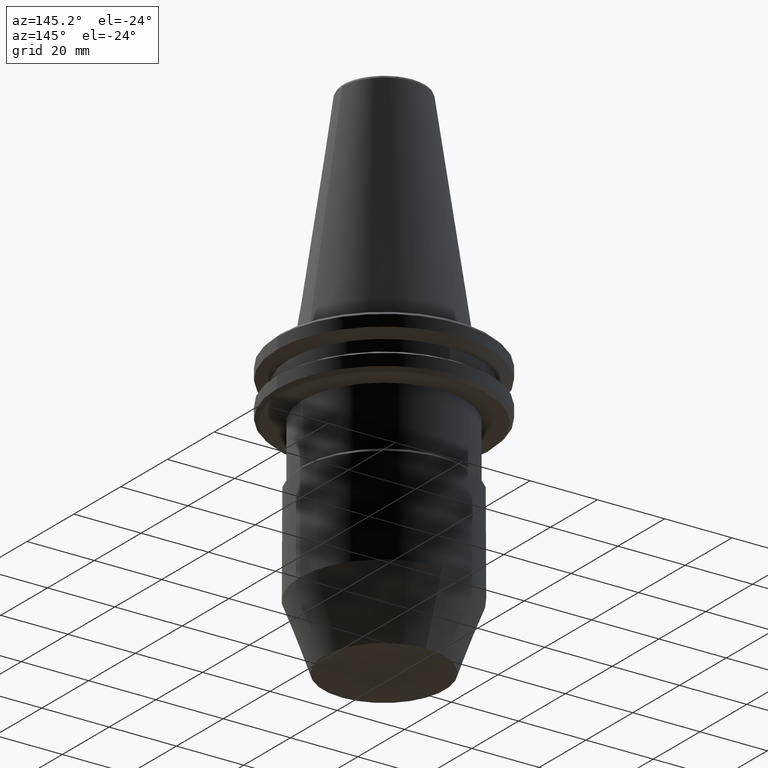
[diagram: clean part render]
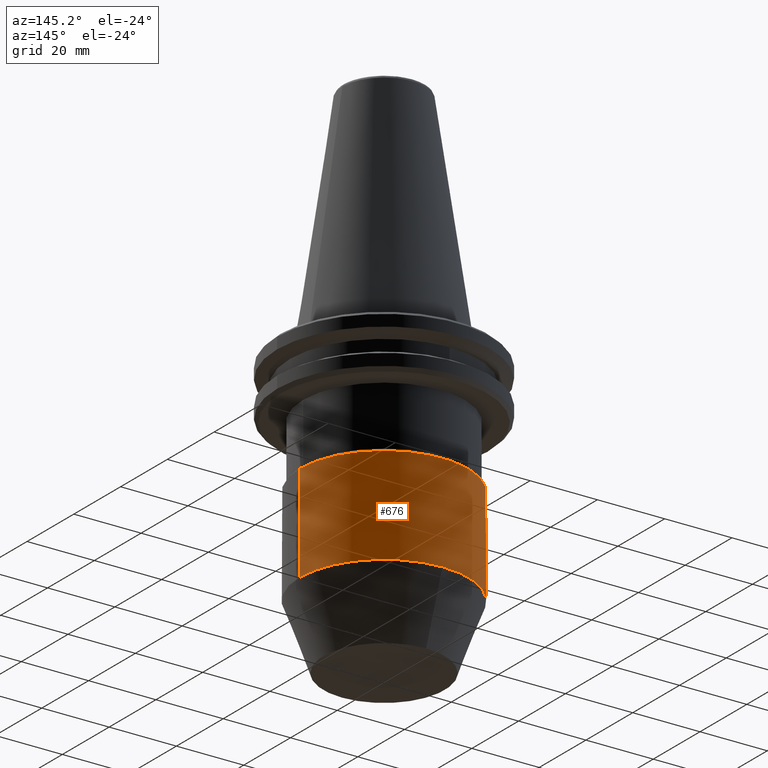
[diagram: same view with one face highlighted and labeled with its STEP entity id]
A machine part, auxiliary view. The second image highlights one B-rep face of the part: STEP entity #676.
In plain terms, the highlighted cylindrical surface (partial cylindrical patch) has radius 25 mm, axis along (0, 0, 1).
Its self-contained STEP definition (entity closure, byte-faithful):
#17 = EDGE_CURVE ( 'NONE', #648, #118, #226, .T. ) ;
#20 = CARTESIAN_POINT ( 'NONE',  ( 0.0000000000000000000, 0.0000000000000000000, -66.76765806400001700 ) ) ;
#118 = VERTEX_POINT ( 'NONE', #426 ) ;
#122 = DIRECTION ( 'NONE',  ( 0.0000000000000000000, 0.0000000000000000000, 1.000000000000000000 ) ) ;
#127 = VECTOR ( 'NONE', #424, 1000.000000000000000 ) ;
#159 = CARTESIAN_POINT ( 'NONE',  ( 25.00000000000000000, 0.0000000000000000000, -66.76765806400001700 ) ) ;
#160 = EDGE_CURVE ( 'NONE', #250, #1213, #171, .T. ) ;
#167 = VECTOR ( 'NONE', #761, 1000.000000000000000 ) ;
#171 = LINE ( 'NONE', #246, #127 ) ;
#175 = AXIS2_PLACEMENT_3D ( 'NONE', #217, #919, #311 ) ;
#217 = CARTESIAN_POINT ( 'NONE',  ( 0.0000000000000000000, 0.0000000000000000000, -66.76765806400001700 ) ) ;
#226 = LINE ( 'NONE', #159, #167 ) ;
#246 = CARTESIAN_POINT ( 'NONE',  ( -25.00000000000000000, 3.061616997868383000E-015, -66.76765806400001700 ) ) ;
#250 = VERTEX_POINT ( 'NONE', #984 ) ;
#311 = DIRECTION ( 'NONE',  ( 1.000000000000000000, 0.0000000000000000000, 0.0000000000000000000 ) ) ;
#314 = FACE_OUTER_BOUND ( 'NONE', #1040, .T. ) ;
#403 = CARTESIAN_POINT ( 'NONE',  ( 25.00000000000000000, 0.0000000000000000000, -66.76765806400001700 ) ) ;
#424 = DIRECTION ( 'NONE',  ( 0.0000000000000000000, 0.0000000000000000000, 1.000000000000000000 ) ) ;
#426 = CARTESIAN_POINT ( 'NONE',  ( 24.99999999999997900, 0.0000000000000000000, -37.69999999999998200 ) ) ;
#474 = CARTESIAN_POINT ( 'NONE',  ( 0.0000000000000000000, 0.0000000000000000000, -66.76765806400001700 ) ) ;
#485 = ORIENTED_EDGE ( 'NONE', *, *, #17, .F. ) ;
#510 = CARTESIAN_POINT ( 'NONE',  ( 3.061616997868382600E-015, 24.99999999999999300, -66.76765806400001700 ) ) ;
#516 = VERTEX_POINT ( 'NONE', #510 ) ;
#562 = EDGE_CURVE ( 'NONE', #648, #516, #1112, .T. ) ;
#578 = ORIENTED_EDGE ( 'NONE', *, *, #738, .F. ) ;
#586 = DIRECTION ( 'NONE',  ( 1.000000000000000000, 0.0000000000000000000, 0.0000000000000000000 ) ) ;
#590 = DIRECTION ( 'NONE',  ( -0.0000000000000000000, -0.0000000000000000000, 1.000000000000000000 ) ) ;
#625 = DIRECTION ( 'NONE',  ( 1.000000000000000000, 0.0000000000000000000, 0.0000000000000000000 ) ) ;
#648 = VERTEX_POINT ( 'NONE', #403 ) ;
#658 = AXIS2_PLACEMENT_3D ( 'NONE', #474, #1195, #586 ) ;
#676 = ADVANCED_FACE ( 'NONE', ( #314 ), #1219, .T. ) ;
#709 = CIRCLE ( 'NONE', #1093, 24.99999999999997900 ) ;
#733 = ORIENTED_EDGE ( 'NONE', *, *, #562, .T. ) ;
#738 = EDGE_CURVE ( 'NONE', #118, #1213, #709, .T. ) ;
#761 = DIRECTION ( 'NONE',  ( 0.0000000000000000000, 0.0000000000000000000, 1.000000000000000000 ) ) ;
#877 = ORIENTED_EDGE ( 'NONE', *, *, #951, .T. ) ;
#906 = CARTESIAN_POINT ( 'NONE',  ( -24.99999999999997900, 3.061616997868381500E-015, -37.69999999999998200 ) ) ;
#919 = DIRECTION ( 'NONE',  ( 0.0000000000000000000, 0.0000000000000000000, 1.000000000000000000 ) ) ;
#951 = EDGE_CURVE ( 'NONE', #516, #250, #1147, .T. ) ;
#984 = CARTESIAN_POINT ( 'NONE',  ( -25.00000000000000000, 3.061616997868383000E-015, -66.76765806400001700 ) ) ;
#1040 = EDGE_LOOP ( 'NONE', ( #877, #1257, #578, #485, #733 ) ) ;
#1093 = AXIS2_PLACEMENT_3D ( 'NONE', #1201, #590, #1304 ) ;
#1112 = CIRCLE ( 'NONE', #175, 25.00000000000000000 ) ;
#1147 = CIRCLE ( 'NONE', #658, 25.00000000000000000 ) ;
#1195 = DIRECTION ( 'NONE',  ( 0.0000000000000000000, 0.0000000000000000000, 1.000000000000000000 ) ) ;
#1201 = CARTESIAN_POINT ( 'NONE',  ( 0.0000000000000000000, 0.0000000000000000000, -37.69999999999998200 ) ) ;
#1213 = VERTEX_POINT ( 'NONE', #906 ) ;
#1219 = CYLINDRICAL_SURFACE ( 'NONE', #1245, 25.00000000000000000 ) ;
#1245 = AXIS2_PLACEMENT_3D ( 'NONE', #20, #122, #625 ) ;
#1257 = ORIENTED_EDGE ( 'NONE', *, *, #160, .T. ) ;
#1304 = DIRECTION ( 'NONE',  ( -1.000000000000000000, 0.0000000000000000000, 0.0000000000000000000 ) ) ;